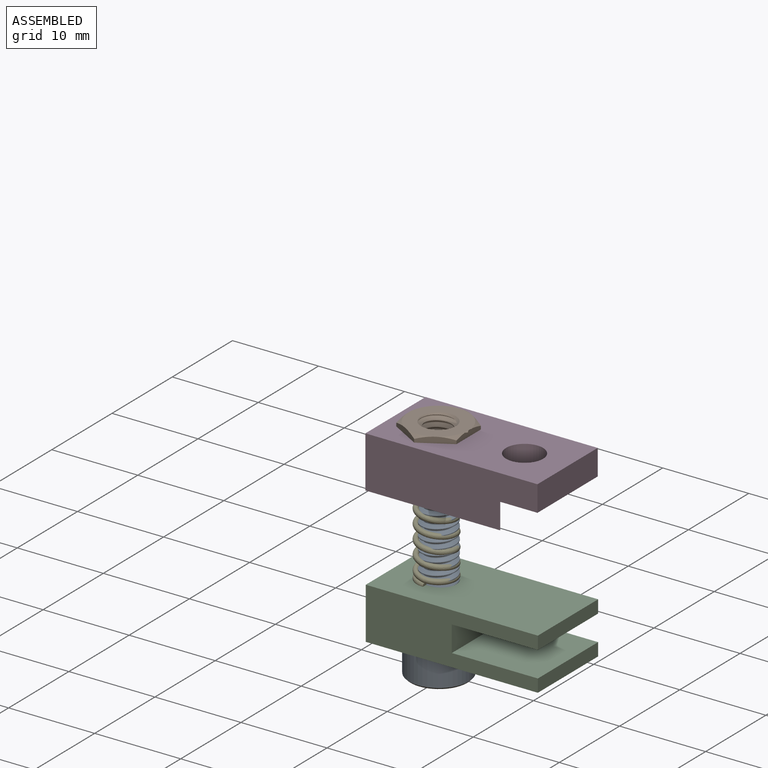
[diagram: assembled view]
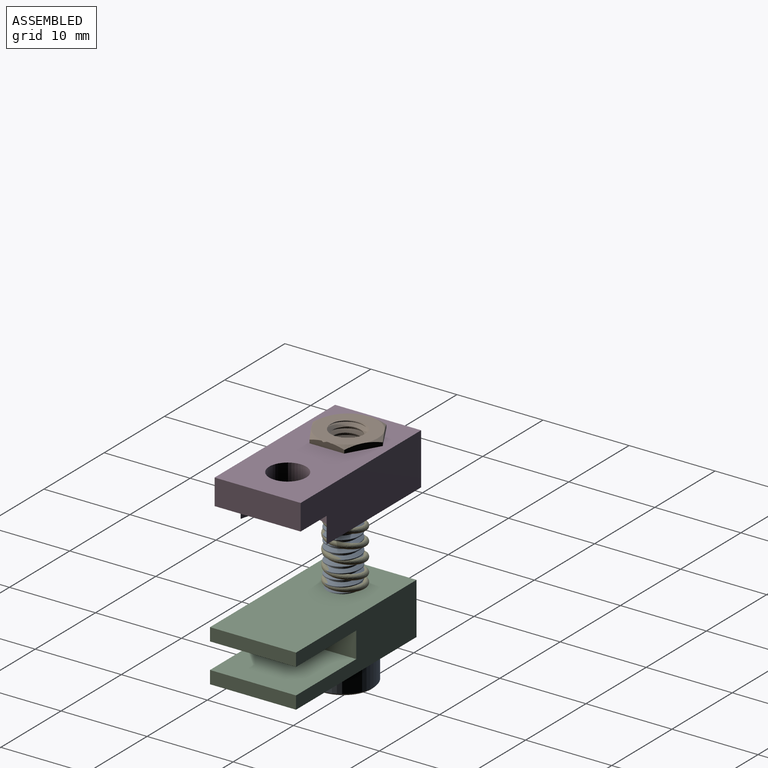
[diagram: assembled view, second angle]
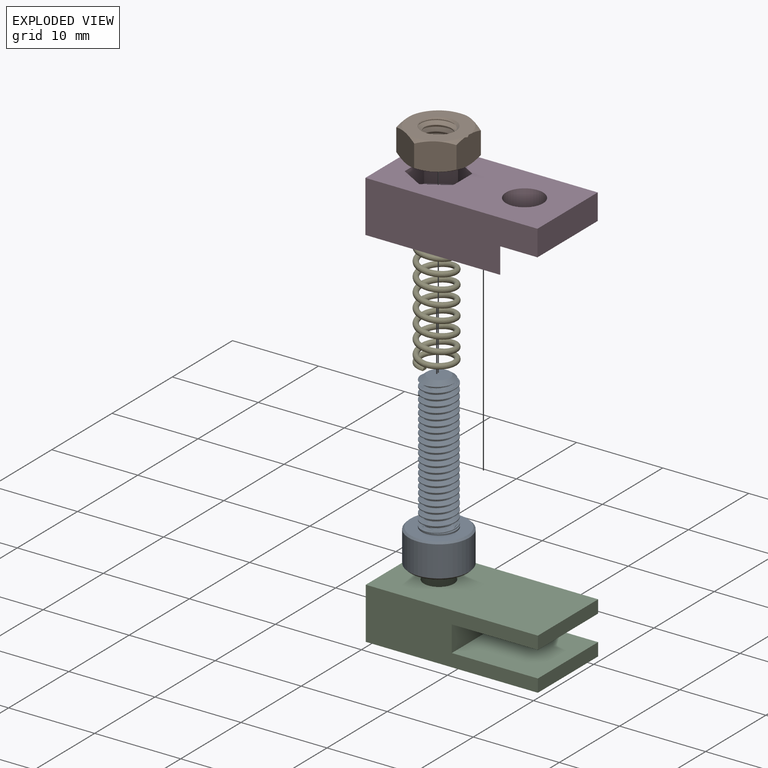
[diagram: exploded view]
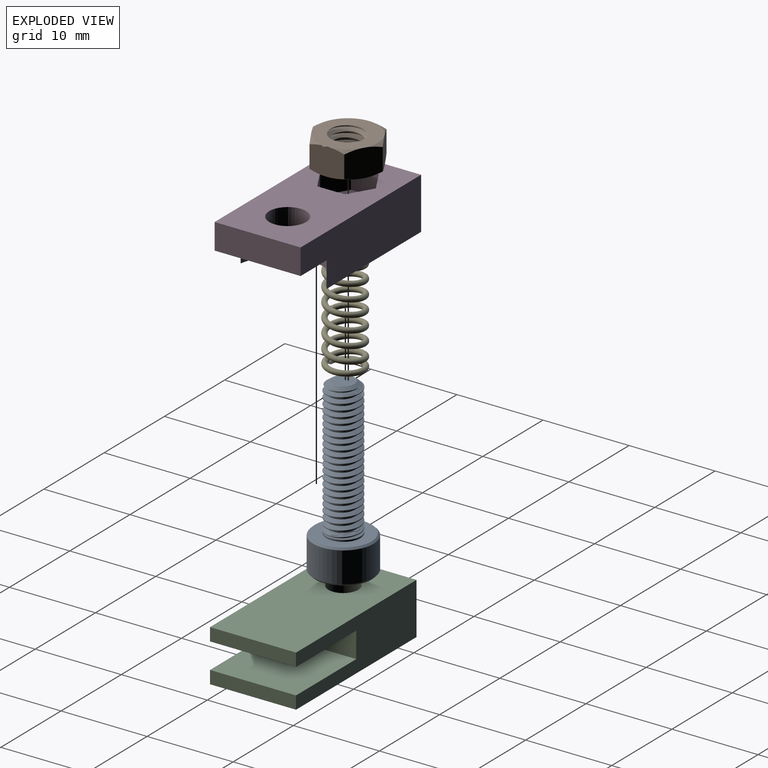
[diagram: exploded view, second angle]
ASSEMBLY  parts=5 mates=4
PART A: 117 faces, bbox 7.7x7.7x20.8 mm
  f0: plane 3.46x3mm, normal (0,0,-1), area 7.8mm2, adj f1,f112,f113,f114,f115,f116
  f1: plane 2.91x2.16mm, normal (-0.5,0.87,0), area 3.6mm2, adj f0,f2,f112,f116
  f2: revolved ~1.5x0.87mm, area 0mm2, adj f1,f3
  f3: plane 6.91x6.91mm, normal (0,0,-1), area 24.6mm2, adj f2,f4,f107,f108,f109,f110,f111
  f4: revolved ~7x7mm, area 6.3mm2, adj f3,f5
  f5: revolved ~7x7mm, area 78.7mm2, adj f4,f6
  f6: revolved ~7x7mm, area 6.3mm2, adj f5,f7
  f7: plane 6.58x6.58mm, normal (0,0,1), area 21.4mm2, adj f6,f8,f106
  f8: revolved ~4x2mm, area 1.1mm2, adj f7,f9,f105,f106
  f9: revolved ~3.99x2mm, area 1.1mm2, adj f8,f10,f105,f106
  f10: bspline ~16.25x4.62mm, area 128.7mm2, adj f9,f11,f14,f15,f16,f17,f18,f19
  f11: revolved ~4x2mm, area 0.6mm2, adj f10,f12,f14,f104
  f12: bspline ~15.9x4.62mm, area 128.8mm2, adj f11,f13,f14,f15,f16,f17,f18,f19
  f13: revolved ~1.08x0.44mm, area 0mm2, adj f12,f100,f103
  f14: revolved ~4x2mm, area 0.6mm2, adj f10,f11,f12,f15
  f15: revolved ~4x2mm, area 0.6mm2, adj f10,f12,f14,f16
  f16: revolved ~4x2mm, area 0.6mm2, adj f10,f12,f15,f17
  f17: revolved ~4x2mm, area 0.6mm2, adj f10,f12,f16,f18
  f18: revolved ~4x2mm, area 0.6mm2, adj f10,f12,f17,f19
  f19: revolved ~4x2mm, area 0.6mm2, adj f10,f12,f18,f20
  f20: revolved ~4x2mm, area 0.6mm2, adj f10,f12,f19,f21
  f21: revolved ~4x2mm, area 0.6mm2, adj f10,f12,f20,f22
  f22: revolved ~4x2mm, area 0.6mm2, adj f10,f12,f21,f23
  f23: revolved ~4x2mm, area 0.6mm2, adj f10,f12,f22,f24
  f24: revolved ~4x2mm, area 0.6mm2, adj f10,f12,f23,f25
  f25: revolved ~4x2mm, area 0.6mm2, adj f10,f12,f24,f26
  f26: revolved ~4x2mm, area 0.6mm2, adj f10,f12,f25,f27
  f27: revolved ~4x2mm, area 0.6mm2, adj f10,f12,f26,f28
  f28: revolved ~4x2mm, area 0.6mm2, adj f10,f12,f27,f29
  f29: revolved ~4x2mm, area 0.6mm2, adj f10,f12,f28,f30
  f30: revolved ~4x2mm, area 0.6mm2, adj f10,f12,f29,f31
  f31: revolved ~4x2mm, area 0.6mm2, adj f10,f12,f30,f32
  f32: revolved ~4x2mm, area 0.6mm2, adj f10,f12,f31,f33
  f33: revolved ~4x2mm, area 0.6mm2, adj f10,f12,f32,f34
  f34: revolved ~4x2mm, area 0.6mm2, adj f10,f12,f33,f35
  f35: revolved ~4x2mm, area 0.6mm2, adj f10,f12,f34,f36
  f36: revolved ~4x2mm, area 0.6mm2, adj f10,f12,f35,f37
  f37: revolved ~4x2mm, area 0.6mm2, adj f10,f12,f36,f38
  f38: revolved ~4x2mm, area 0.6mm2, adj f10,f12,f37,f39
  f39: revolved ~4x2mm, area 0.6mm2, adj f10,f12,f38,f40
  f40: revolved ~4x2mm, area 0.6mm2, adj f10,f12,f39,f41
  f41: revolved ~4x2mm, area 0.6mm2, adj f10,f12,f40,f42
  f42: revolved ~4x2mm, area 0.6mm2, adj f10,f12,f41,f43
  f43: revolved ~4x2mm, area 0.6mm2, adj f10,f12,f42,f44
  f44: revolved ~4x2mm, area 0.6mm2, adj f10,f12,f43,f45
  f45: revolved ~4x2mm, area 0.6mm2, adj f10,f12,f44,f46
  f46: revolved ~4x2mm, area 0.6mm2, adj f10,f12,f45,f47
  f47: revolved ~4x2mm, area 0.6mm2, adj f10,f12,f46,f48
  f48: revolved ~4x2mm, area 0.6mm2, adj f10,f12,f47,f49
  f49: revolved ~4x2mm, area 0.6mm2, adj f10,f12,f48,f50
  f50: revolved ~4x2mm, area 0.6mm2, adj f10,f12,f49,f51
  f51: revolved ~4x2mm, area 0.6mm2, adj f10,f12,f50,f52
  f52: revolved ~4x2mm, area 0.6mm2, adj f10,f12,f51,f53
  f53: revolved ~4x2mm, area 0.6mm2, adj f10,f12,f52,f54
  f54: revolved ~4x2mm, area 0.6mm2, adj f10,f12,f53,f55
  f55: revolved ~4x2mm, area 0.6mm2, adj f10,f12,f54,f106
  f56: revolved ~0.82x0.23mm, area 0mm2, adj f10,f57,f105
  f57: revolved ~3.09x1.55mm, area 0.4mm2, adj f10,f12,f56,f58,f105
  f58: revolved ~3.09x1.55mm, area 0.4mm2, adj f10,f12,f57,f59
  f59: revolved ~3.09x1.55mm, area 0.4mm2, adj f10,f12,f58,f60
  f60: revolved ~3.09x1.55mm, area 0.4mm2, adj f10,f12,f59,f61
  f61: revolved ~3.09x1.55mm, area 0.4mm2, adj f10,f12,f60,f62
  f62: revolved ~3.09x1.55mm, area 0.4mm2, adj f10,f12,f61,f63
  f63: revolved ~3.09x1.55mm, area 0.4mm2, adj f10,f12,f62,f64
  f64: revolved ~3.09x1.55mm, area 0.4mm2, adj f10,f12,f63,f65
  f65: revolved ~3.09x1.55mm, area 0.4mm2, adj f10,f12,f64,f66
  f66: revolved ~3.09x1.55mm, area 0.4mm2, adj f10,f12,f65,f67
  f67: revolved ~3.09x1.55mm, area 0.4mm2, adj f10,f12,f66,f68
  f68: revolved ~3.09x1.55mm, area 0.4mm2, adj f10,f12,f67,f69
  f69: revolved ~3.09x1.55mm, area 0.4mm2, adj f10,f12,f68,f70
  f70: revolved ~3.09x1.55mm, area 0.4mm2, adj f10,f12,f69,f71
  f71: revolved ~3.09x1.55mm, area 0.4mm2, adj f10,f12,f70,f72
  f72: revolved ~3.09x1.55mm, area 0.4mm2, adj f10,f12,f71,f73
  f73: revolved ~3.09x1.55mm, area 0.4mm2, adj f10,f12,f72,f74
  f74: revolved ~3.09x1.55mm, area 0.4mm2, adj f10,f12,f73,f75
  f75: revolved ~3.09x1.55mm, area 0.4mm2, adj f10,f12,f74,f76
  f76: revolved ~3.09x1.55mm, area 0.4mm2, adj f10,f12,f75,f77
  f77: revolved ~3.09x1.55mm, area 0.4mm2, adj f10,f12,f76,f78
  f78: revolved ~3.09x1.55mm, area 0.4mm2, adj f10,f12,f77,f79
  f79: revolved ~3.09x1.55mm, area 0.4mm2, adj f10,f12,f78,f80
  f80: revolved ~3.09x1.55mm, area 0.4mm2, adj f10,f12,f79,f81
  f81: revolved ~3.09x1.55mm, area 0.4mm2, adj f10,f12,f80,f82
  f82: revolved ~3.09x1.55mm, area 0.4mm2, adj f10,f12,f81,f83
  f83: revolved ~3.09x1.55mm, area 0.4mm2, adj f10,f12,f82,f84
  f84: revolved ~3.09x1.55mm, area 0.4mm2, adj f10,f12,f83,f85
  f85: revolved ~3.09x1.55mm, area 0.4mm2, adj f10,f12,f84,f86
  f86: revolved ~3.09x1.55mm, area 0.4mm2, adj f10,f12,f85,f87
  f87: revolved ~3.09x1.55mm, area 0.4mm2, adj f10,f12,f86,f88
  f88: revolved ~3.09x1.55mm, area 0.4mm2, adj f10,f12,f87,f89
  f89: revolved ~3.09x1.55mm, area 0.4mm2, adj f10,f12,f88,f90
  f90: revolved ~3.09x1.55mm, area 0.4mm2, adj f10,f12,f89,f91
  f91: revolved ~3.09x1.55mm, area 0.4mm2, adj f10,f12,f90,f92
  f92: revolved ~3.09x1.55mm, area 0.4mm2, adj f10,f12,f91,f93
  f93: revolved ~3.09x1.55mm, area 0.4mm2, adj f10,f12,f92,f94
  f94: revolved ~3.09x1.55mm, area 0.4mm2, adj f10,f12,f93,f95
  f95: revolved ~3.09x1.55mm, area 0.4mm2, adj f10,f12,f94,f96
  f96: revolved ~3.09x1.55mm, area 0.4mm2, adj f10,f12,f95,f97
  f97: revolved ~3.09x1.55mm, area 0.4mm2, adj f10,f12,f96,f98
  f98: revolved ~3.09x1.55mm, area 0.4mm2, adj f10,f12,f97,f99
  f99: revolved ~3.09x1.55mm, area 0.4mm2, adj f10,f12,f98,f100
  f100: revolved ~3.09x1.55mm, area 0.4mm2, adj f10,f12,f13,f99,f101
  f101: revolved ~3.63x1.82mm, area 2.2mm2, adj f10,f100,f102,f103
  f102: plane 2.58x2.58mm, normal (0,0,1), area 5.2mm2, adj f101,f103
  f103: revolved ~4x2mm, area 3.5mm2, adj f10,f12,f13,f101,f102,f104
  f104: revolved ~1.73x0.99mm, area 0.1mm2, adj f10,f11,f12,f103
  f105: revolved ~3.57x2mm, area 1.8mm2, adj f8,f9,f10,f12,f56,f57,f106
  f106: revolved ~4x2mm, area 1.4mm2, adj f7,f8,f9,f10,f12,f55,f105
  f107: revolved ~1.5x0.87mm, area 0mm2, adj f3,f116
  f108: revolved ~1.73x0.43mm, area 0.3mm2, adj f3,f115
  f109: revolved ~1.5x0.87mm, area 0mm2, adj f3,f114
  f110: revolved ~1.5x0.87mm, area 0mm2, adj f3,f113
  f111: revolved ~1.73x0.23mm, area 0mm2, adj f3,f112
  f112: plane 2.91x2.39mm, normal (-1,0,0), area 3.6mm2, adj f0,f1,f111,f113
  f113: plane 2.91x2.16mm, normal (-0.5,-0.87,0), area 3.6mm2, adj f0,f110,f112,f114
  f114: plane 2.91x2.16mm, normal (0.5,-0.87,0), area 3.6mm2, adj f0,f109,f113,f115
  f115: plane 2.42x1.9mm, normal (1,0,0), area 3.6mm2, adj f0,f108,f114,f116
  f116: plane 2.91x2.16mm, normal (0.5,0.87,0), area 3.6mm2, adj f0,f1,f107,f115
PART B: 39 faces, bbox 8.4x8.4x4.1 mm
  f0: plane 3.83x3.53mm, normal (-0.5,0.87,0), area 12.1mm2, adj f1,f5,f8,f9,f12,f13
  f1: plane 4.37x3.53mm, normal (-1,0,0), area 12.1mm2, adj f0,f2,f9,f10,f13,f14
  f2: plane 3.83x3.53mm, normal (-0.5,-0.87,0), area 12.1mm2, adj f1,f3,f10,f11,f14,f15
  f3: plane 3.83x3.53mm, normal (0.5,-0.87,0), area 12.1mm2, adj f2,f4,f6,f11,f15,f16
  f4: plane 4.37x3.53mm, normal (1,0,0), area 12.1mm2, adj f3,f5,f6,f7,f16,f17
  f5: plane 3.83x3.53mm, normal (0.5,0.87,0), area 12.1mm2, adj f0,f4,f7,f8,f12,f17
  f6: revolved ~3.5x2.29mm, area 1.2mm2, adj f3,f4,f18
  f7: revolved ~3.5x2.29mm, area 1.2mm2, adj f4,f5,f18
  f8: revolved ~4.04x1.01mm, area 1.2mm2, adj f0,f5,f18
  f9: revolved ~3.5x2.29mm, area 1.2mm2, adj f0,f1,f18
  f10: revolved ~3.5x2.29mm, area 1.2mm2, adj f1,f2,f18
  f11: revolved ~4.04x1.01mm, area 1.2mm2, adj f2,f3,f18
  f12: revolved ~4.04x1.01mm, area 1.2mm2, adj f0,f5,f19
  f13: revolved ~3.5x2.29mm, area 1.2mm2, adj f0,f1,f19
  f14: revolved ~3.5x2.29mm, area 1.2mm2, adj f1,f2,f19
  f15: revolved ~4.04x1.01mm, area 1.2mm2, adj f2,f3,f19
  f16: revolved ~3.5x2.29mm, area 1.2mm2, adj f3,f4,f19
  f17: revolved ~3.5x2.29mm, area 1.2mm2, adj f4,f5,f19
  f18: plane 7x7mm, normal (0,0,1), area 25.9mm2, adj f6,f7,f8,f9,f10,f11,f20,f21
  f19: plane 7x7mm, normal (0,0,-1), area 25.9mm2, adj f12,f13,f14,f15,f16,f17,f31,f32
  f20: revolved ~1.88x1.35mm, area 0.1mm2, adj f18,f21,f36
  f21: revolved ~4x2mm, area 1.7mm2, adj f18,f20,f22,f36
  f22: revolved ~3.92x2mm, area 1.9mm2, adj f18,f21,f35,f36,f37
  f23: revolved ~2.87x2mm, area 0.3mm2, adj f18,f24,f36,f37
  f24: revolved ~4x2mm, area 0.6mm2, adj f23,f36,f37,f38
  f25: revolved ~4x2mm, area 0.6mm2, adj f26,f36,f37,f38
  f26: revolved ~4x2mm, area 0.6mm2, adj f25,f27,f36,f37
  f27: revolved ~4x2mm, area 0.6mm2, adj f26,f28,f36,f37
  f28: revolved ~4x2mm, area 0.6mm2, adj f27,f29,f36,f37
  f29: revolved ~4x2mm, area 0.6mm2, adj f28,f30,f36,f37
  f30: revolved ~4x2mm, area 0.6mm2, adj f29,f31,f36,f37
  f31: revolved ~3.4x2mm, area 0.3mm2, adj f19,f30,f36,f37
  f32: revolved ~2x2mm, area 0.2mm2, adj f19,f33,f37
  f33: revolved ~4x2mm, area 1.8mm2, adj f19,f32,f34,f37
  f34: revolved ~3.61x2mm, area 1.6mm2, adj f19,f33,f35,f36,f37
  f35: bspline ~3.57x3.09mm, area 2.8mm2, adj f22,f34,f36,f37
  f36: bspline ~4.62x4mm, area 23mm2, adj f20,f21,f22,f23,f24,f25,f26,f27
  f37: bspline ~4.62x4mm, area 23.1mm2, adj f22,f23,f24,f25,f26,f27,f28,f29
  f38: revolved ~4x2mm, area 0.6mm2, adj f24,f25,f36,f37
PART C: 11 faces, bbox 10x20x6 mm
  f0: plane 10x1.5mm, normal (0,-1,0), area 15mm2, adj f1,f7,f8,f9
  f1: plane 10x10mm, normal (0,0,-1), area 100mm2, adj f0,f2,f8,f9
  f2: plane 10x3mm, normal (0,-1,0), area 30mm2, adj f1,f3,f8,f9
  f3: plane 10x10mm, normal (0,0,1), area 100mm2, adj f2,f4,f8,f9
  f4: plane 10x1.5mm, normal (0,-1,0), area 15mm2, adj f3,f5,f8,f9
  f5: plane 20x10mm, normal (0,0,-1), area 190.4mm2, adj f4,f6,f8,f9,f10
  f6: plane 10x6mm, normal (0,1,0), area 60mm2, adj f5,f7,f8,f9
  f7: plane 20x10mm, normal (0,0,1), area 190.4mm2, adj f0,f6,f8,f9,f10
  f8: plane 20x6mm, normal (1,0,0), area 90mm2, adj f0,f1,f2,f3,f4,f5,f6,f7
  f9: plane 20x6mm, normal (-1,0,0), area 90mm2, adj f0,f1,f2,f3,f4,f5,f6,f7
  f10: cylinder r=1.75mm len=6mm, axis (0,0,1), area 66mm2, adj f5,f7
PART D: 19 faces, bbox 10x20x6 mm
  f0: plane 10x3mm, normal (0,-1,0), area 30mm2, adj f2,f4,f7,f15
  f1: plane 15.68x10mm, normal (0,0,1), area 114.6mm2, adj f2,f5,f6,f7,f16,f17,f18
  f2: plane 20x6mm, normal (1,0,0), area 107mm2, adj f0,f1,f4,f6,f15,f17
  f3: cylinder r=2.15mm len=4.3mm, axis (0,0,1), area 40.5mm2, adj f4,f15
  f4: plane 20x10mm, normal (0,0,-1), area 158.3mm2, adj f0,f2,f3,f6,f7,f9,f10,f11
  f5: cylinder r=1.75mm len=3.5mm, axis (0,0,1), area 38.5mm2, adj f1,f8
  f6: plane 10x6mm, normal (0,1,0), area 60mm2, adj f1,f2,f4,f7
  f7: plane 20x6mm, normal (-1,0,0), area 107mm2, adj f0,f1,f4,f6,f15,f18
  f8: plane 6.47x5.6mm, normal (0,0,-1), area 17.5mm2, adj f5,f9,f10,f11,f12,f13,f14
  f9: plane 3.23x2.5mm, normal (0,-1,0), area 8.1mm2, adj f4,f8,f10,f14
  f10: plane 2.8x2.5mm, normal (-0.87,-0.5,0), area 8.1mm2, adj f4,f8,f9,f11
  f11: plane 2.8x2.5mm, normal (-0.87,0.5,0), area 8.1mm2, adj f4,f8,f10,f12
  f12: plane 3.23x2.5mm, normal (0,1,0), area 8.1mm2, adj f4,f8,f11,f13
  f13: plane 2.8x2.5mm, normal (0.87,0.5,0), area 8.1mm2, adj f4,f8,f12,f14
  f14: plane 2.8x2.5mm, normal (0.87,-0.5,0), area 8.1mm2, adj f4,f8,f9,f13
  f15: plane 10x8.65mm, normal (0,0,1), area 61.2mm2, adj f0,f2,f3,f7,f16,f17,f18
  f16: cylinder r=3.65mm len=3mm, axis (0,0,1), area 5.8mm2, adj f1,f15,f17,f18
  f17: cylinder r=5.06mm len=4.2mm, axis (0,0,1), area 18.7mm2, adj f1,f2,f15,f16
  f18: cylinder r=5.06mm len=4.2mm, axis (0,0,1), area 18.7mm2, adj f1,f7,f15,f16
PART E: 10 faces, bbox 5.7x5.7x13.7 mm
  f0: plane 0.63x0.33mm, normal (0,-1,0), area 0.1mm2, adj f1,f2,f3
  f1: plane 4.72x2.68mm, normal (0,0,1), area 3mm2, adj f0,f2,f3
  f2: bspline ~4.01x3.99mm, area 9.6mm2, adj f0,f1,f3,f4
  f3: bspline ~5.24x5.21mm, area 11.7mm2, adj f0,f1,f2,f5
  f4: bspline ~12.04x4mm, area 76.1mm2, adj f2,f5,f8
  f5: bspline ~12.04x5.23mm, area 92.4mm2, adj f3,f4,f9
  f6: plane 4.72x2.68mm, normal (0,0,-1), area 2.9mm2, adj f7,f8,f9
  f7: plane 0.63x0.33mm, normal (0,1,-0.04), area 0.1mm2, adj f6,f8,f9
  f8: bspline ~3.96x3.96mm, area 9.6mm2, adj f4,f6,f7,f9
  f9: bspline ~5.24x5.21mm, area 11.8mm2, adj f5,f6,f7,f8
PLACE A t=(-20.11,-21.26,0.79)mm
PLACE B t=(-20.39,-20.92,5.59)mm
PLACE C rot(axis=(0,0,1),90deg) t=(-15.11,-26.26,-12.14)mm
PLACE D rot(axis=(0.71,-0.71,0),180deg) t=(-15.39,-15.92,3.42)mm fixed
PLACE E rot(axis=(-0.71,0.71,0),180deg) t=(-20.39,-21.25,-9.21)mm
MATE fastened D.f5 <-> B.f19  axis (0,0,-1) through (-20.39,-20.92,3.99)mm
MATE fastened C.f10 <-> A.f7  axis (0,0,-1) through (-20.11,-21.26,-15.21)mm
MATE fastened C.f10 <-> E.f1  axis (0,0,1) through (-20.11,-21.26,-9.21)mm
MATE fastened E.f6 <-> D.f15  axis (0,0,-1) through (-20.39,-22.92,3.49)mm
